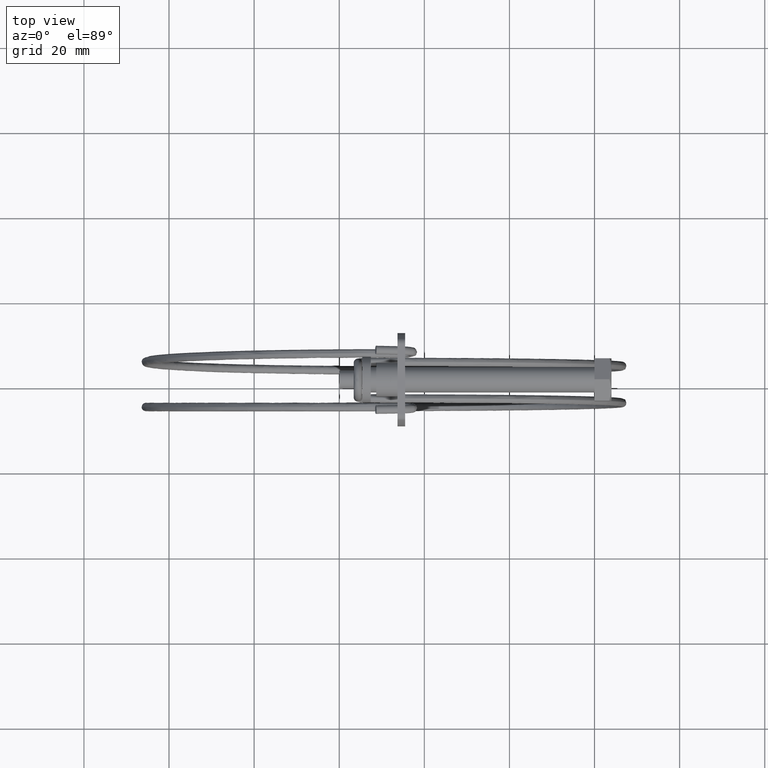
[diagram: clean part render]
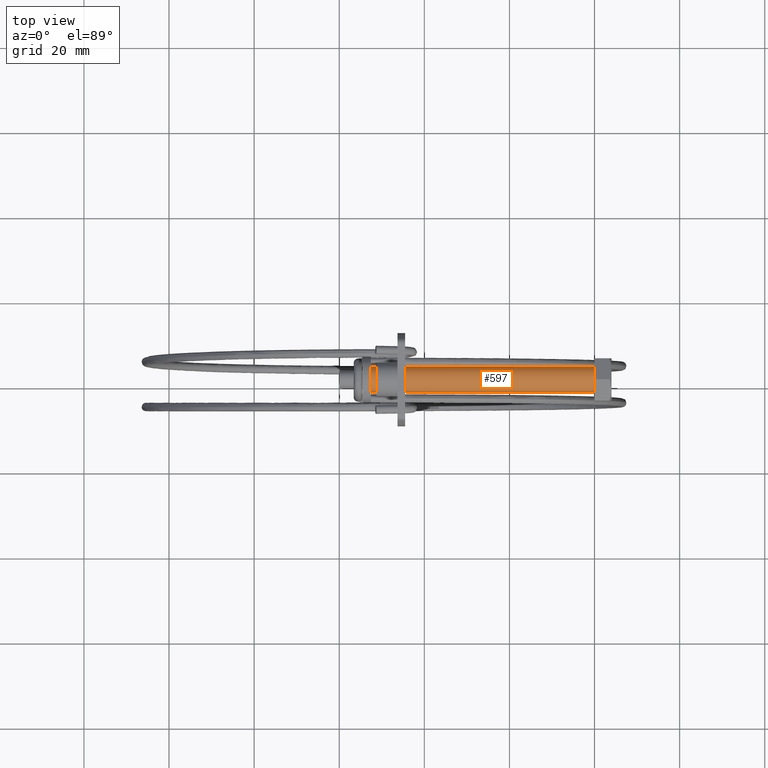
[diagram: same view with one face highlighted and labeled with its STEP entity id]
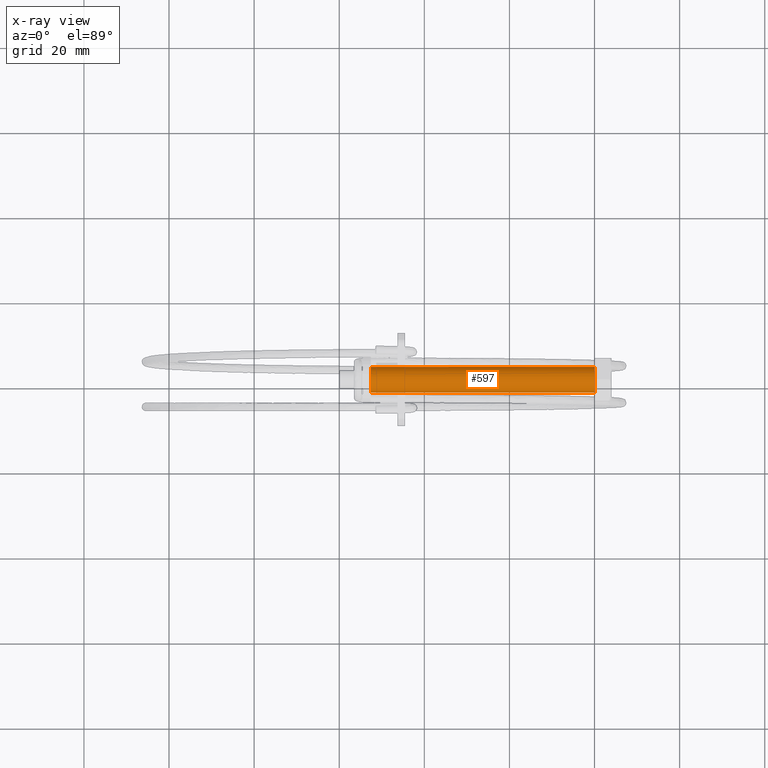
[diagram: x-ray of the same camera — body ghosted, the highlighted face saturated]
A machine part, top view. The second image highlights one B-rep face of the part: STEP entity #597.
The next image is the same camera in x-ray: the body ghosted, the highlighted face saturated — about 0% of this face is hidden behind the body in this view.
In plain terms, the highlighted face is a freeform B-spline surface patch.
Its self-contained STEP definition (entity closure, byte-faithful):
#434=CARTESIAN_POINT('',(1.703657E-015,2.979028579083503,0.354102704032580));
#435=VERTEX_POINT('',#434);
#453=CARTESIAN_POINT('',(1.776357E-015,-2.994404395227005,-0.183145619234129));
#454=VERTEX_POINT('',#453);
#468=CARTESIAN_POINT('',(-52.600000000000009,-2.994404395227003,-0.183145619234128));
#469=VERTEX_POINT('',#468);
#470=CARTESIAN_POINT('',(1.776357E-015,-2.994404395227005,-0.183145619234129));
#471=CARTESIAN_POINT('',(-52.600000000000009,-2.994404395227003,-0.183145619234128));
#472=QUASI_UNIFORM_CURVE('',1,(#470,#471),.UNSPECIFIED.,.F.,.U.);
#473=EDGE_CURVE('',#454,#469,#472,.T.);
#490=CARTESIAN_POINT('',(-52.599999999999987,2.979028579083501,0.354102704032579));
#491=VERTEX_POINT('',#490);
#507=CARTESIAN_POINT('',(1.703657E-015,2.979028579083503,0.354102704032580));
#508=CARTESIAN_POINT('',(-52.599999999999987,2.979028579083501,0.354102704032579));
#509=QUASI_UNIFORM_CURVE('',1,(#507,#508),.UNSPECIFIED.,.F.,.U.);
#510=EDGE_CURVE('',#435,#491,#509,.T.);
#515=CARTESIAN_POINT('',(1.315000000000001,-2.994404395265511,-0.183145618604565));
#516=CARTESIAN_POINT('',(1.315000000000001,-3.177550013870076,2.811258776660945));
#517=CARTESIAN_POINT('',(1.315000000000001,-0.183145618604565,2.994404395265511));
#518=CARTESIAN_POINT('',(1.315000000000001,2.644630472518424,3.167358590197487));
#519=CARTESIAN_POINT('',(1.315000000000002,2.979028579090910,0.354102703970265));
#520=CARTESIAN_POINT('',(-53.947875000000010,-2.994404395265511,-0.183145618604565));
#521=CARTESIAN_POINT('',(-53.947875000000010,-3.177550013870076,2.811258776660945));
#522=CARTESIAN_POINT('',(-53.947875000000010,-0.183145618604565,2.994404395265511));
#523=CARTESIAN_POINT('',(-53.947875000000010,2.644630472518424,3.167358590197487));
#524=CARTESIAN_POINT('',(-53.947875000000025,2.979028579090910,0.354102703970265));
#532=(BOUNDED_SURFACE()B_SPLINE_SURFACE(2,1,((#515,#520),(#516,#521),(#517,#522),(#518,#523),(#519,#524)),.UNSPECIFIED.,.F.,.F.,.U.)B_SPLINE_SURFACE_WITH_KNOTS((3,2,3),(2,2),(0.0,4.970562748476990,9.742302987014901),(0.0,55.262875000000022),.UNSPECIFIED.)GEOMETRIC_REPRESENTATION_ITEM()RATIONAL_B_SPLINE_SURFACE(((1.0,1.0),(0.707106781186548,0.707106781186548),(1.0,1.0),(0.718822509939086,0.718822509939086),(0.977505800795127,0.977505800795127)))REPRESENTATION_ITEM('')SURFACE());
#533=CARTESIAN_POINT('',(0.0,0.0,2.999999999999910));
#534=VERTEX_POINT('',#533);
#535=CARTESIAN_POINT('',(0.0,0.0,2.999999999999910));
#536=CARTESIAN_POINT('',(0.0,2.664523577741757,2.999999999999910));
#537=CARTESIAN_POINT('',(1.703657E-015,2.979028579083504,0.354102704032580));
#545=(BOUNDED_CURVE()B_SPLINE_CURVE(2,(#535,#536,#537),.UNSPECIFIED.,.F.,.U.)B_SPLINE_CURVE_WITH_KNOTS((3,3),(0.500000000000000,0.729562473508573),.UNSPECIFIED.)CURVE()GEOMETRIC_REPRESENTATION_ITEM()RATIONAL_B_SPLINE_CURVE((1.0,0.731050832861184,0.956026754174026))REPRESENTATION_ITEM(''));
#546=EDGE_CURVE('',#534,#435,#545,.T.);
#547=ORIENTED_EDGE('',*,*,#546,.T.);
#548=ORIENTED_EDGE('',*,*,#510,.T.);
#549=CARTESIAN_POINT('',(-52.600000000000001,0.0,2.999999999999905));
#550=VERTEX_POINT('',#549);
#551=CARTESIAN_POINT('',(-52.600000000000001,0.0,2.999999999999905));
#552=CARTESIAN_POINT('',(-52.600000000000001,2.664523577741762,2.999999999999905));
#553=CARTESIAN_POINT('',(-52.599999999999994,2.979028579083501,0.354102704032579));
#561=(BOUNDED_CURVE()B_SPLINE_CURVE(2,(#551,#552,#553),.UNSPECIFIED.,.F.,.U.)B_SPLINE_CURVE_WITH_KNOTS((3,3),(0.0,0.229562473508574),.UNSPECIFIED.)CURVE()GEOMETRIC_REPRESENTATION_ITEM()RATIONAL_B_SPLINE_CURVE((1.0,0.731050832861183,0.956026754174028))REPRESENTATION_ITEM(''));
#562=EDGE_CURVE('',#550,#491,#561,.T.);
#563=ORIENTED_EDGE('',*,*,#562,.F.);
#564=CARTESIAN_POINT('',(-52.600000000000009,-2.994404395227003,-0.183145619234128));
#565=CARTESIAN_POINT('',(-52.600000000000009,-2.999999999999905,-0.091658290527092));
#566=CARTESIAN_POINT('',(-52.600000000000001,-2.999999999999905,0.0));
#567=CARTESIAN_POINT('',(-52.600000000000001,-2.999999999999905,2.999999999999905));
#568=CARTESIAN_POINT('',(-52.600000000000001,0.0,2.999999999999905));
#576=(BOUNDED_CURVE()B_SPLINE_CURVE(2,(#564,#565,#566,#567,#568),.UNSPECIFIED.,.F.,.U.)B_SPLINE_CURVE_WITH_KNOTS((3,2,3),(0.739332962169414,0.750000000000000,1.0),.UNSPECIFIED.)CURVE()GEOMETRIC_REPRESENTATION_ITEM()RATIONAL_B_SPLINE_CURVE((0.976072041517703,0.987502787818379,1.0,0.707106781186547,1.0))REPRESENTATION_ITEM(''));
#577=EDGE_CURVE('',#469,#550,#576,.T.);
#578=ORIENTED_EDGE('',*,*,#577,.F.);
#579=ORIENTED_EDGE('',*,*,#473,.F.);
#580=CARTESIAN_POINT('',(1.776357E-015,-2.994404395227005,-0.183145619234129));
#581=CARTESIAN_POINT('',(0.0,-2.999999999999910,-0.091658290527093));
#582=CARTESIAN_POINT('',(0.0,-2.999999999999910,0.0));
#583=CARTESIAN_POINT('',(0.0,-2.999999999999910,2.999999999999910));
#584=CARTESIAN_POINT('',(0.0,0.0,2.999999999999910));
#592=(BOUNDED_CURVE()B_SPLINE_CURVE(2,(#580,#581,#582,#583,#584),.UNSPECIFIED.,.F.,.U.)B_SPLINE_CURVE_WITH_KNOTS((3,2,3),(0.239332962169413,0.250000000000000,0.500000000000000),.UNSPECIFIED.)CURVE()GEOMETRIC_REPRESENTATION_ITEM()RATIONAL_B_SPLINE_CURVE((0.976072041517703,0.987502787818379,1.0,0.707106781186548,1.0))REPRESENTATION_ITEM(''));
#593=EDGE_CURVE('',#454,#534,#592,.T.);
#594=ORIENTED_EDGE('',*,*,#593,.T.);
#595=EDGE_LOOP('',(#547,#548,#563,#578,#579,#594));
#596=FACE_OUTER_BOUND('',#595,.T.);
#597=ADVANCED_FACE('',(#596),#532,.T.);